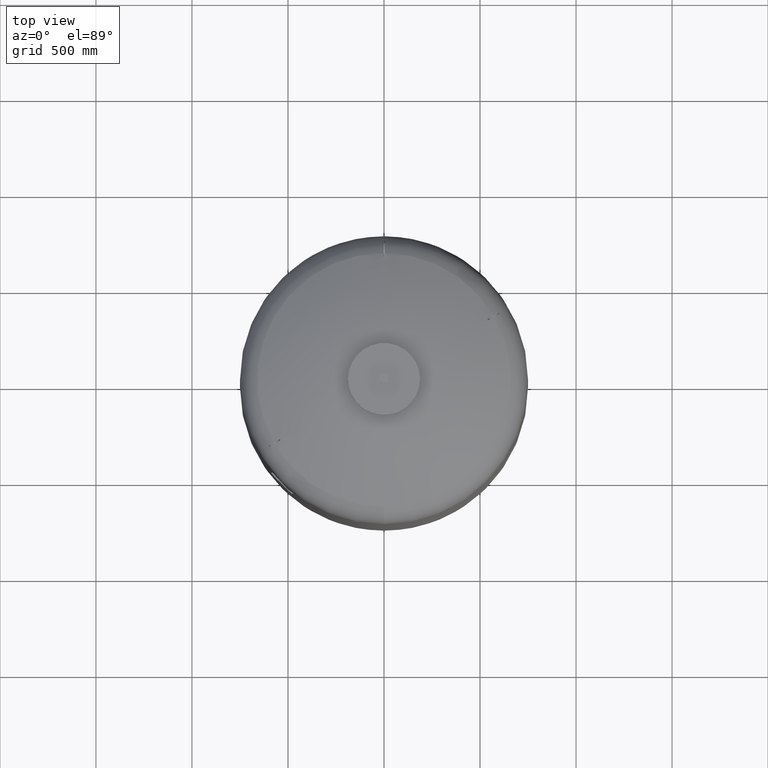
[diagram: clean part render]
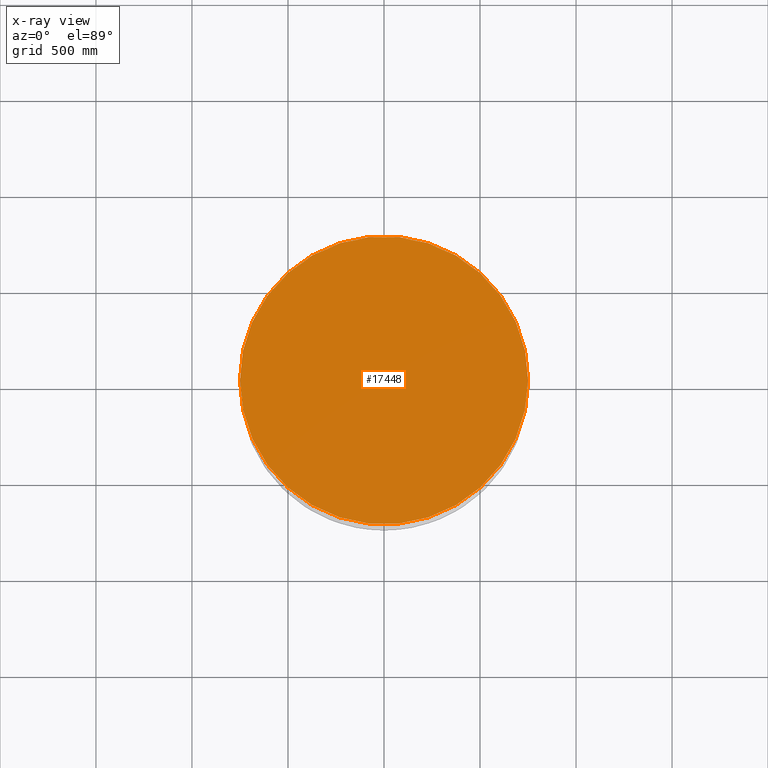
[diagram: x-ray — body ghosted, one internal face saturated and labeled with its STEP entity id]
A machine part, top view, then the same camera in x-ray: the body is ghosted and one INTERNAL B-rep face — a face not visible from any outside direction — is saturated and labeled: STEP entity #17448.
In plain terms, the highlighted planar face has unit normal (0, 0, 1).
Its self-contained STEP definition (entity closure, byte-faithful):
#17238=CARTESIAN_POINT('',(750.0,0.0,2645.0));
#17239=VERTEX_POINT('',#17238);
#17248=CARTESIAN_POINT('',(-750.0,-9.184548E-014,2645.0));
#17249=VERTEX_POINT('',#17248);
#17250=CARTESIAN_POINT('',(1.668796E-014,0.0,2645.0));
#17251=DIRECTION('',(0.0,0.0,1.0));
#17252=DIRECTION('',(1.0,0.0,0.0));
#17253=AXIS2_PLACEMENT_3D('',#17250,#17251,#17252);
#17254=CIRCLE('',#17253,750.0);
#17255=EDGE_CURVE('',#17249,#17239,#17254,.T.);
#17429=CARTESIAN_POINT('',(1.668796E-014,0.0,2645.0));
#17430=DIRECTION('',(0.0,0.0,1.0));
#17431=DIRECTION('',(1.0,0.0,0.0));
#17432=AXIS2_PLACEMENT_3D('',#17429,#17430,#17431);
#17433=CIRCLE('',#17432,750.0);
#17434=EDGE_CURVE('',#17239,#17249,#17433,.T.);
#17439=CARTESIAN_POINT('',(375.0,0.0,2645.0));
#17440=DIRECTION('',(0.0,0.0,1.0));
#17441=DIRECTION('',(1.0,0.0,0.0));
#17442=AXIS2_PLACEMENT_3D('',#17439,#17440,#17441);
#17443=PLANE('',#17442);
#17444=ORIENTED_EDGE('',*,*,#17434,.T.);
#17445=ORIENTED_EDGE('',*,*,#17255,.T.);
#17446=EDGE_LOOP('',(#17444,#17445));
#17447=FACE_OUTER_BOUND('',#17446,.T.);
#17448=ADVANCED_FACE('',(#17447),#17443,.T.);